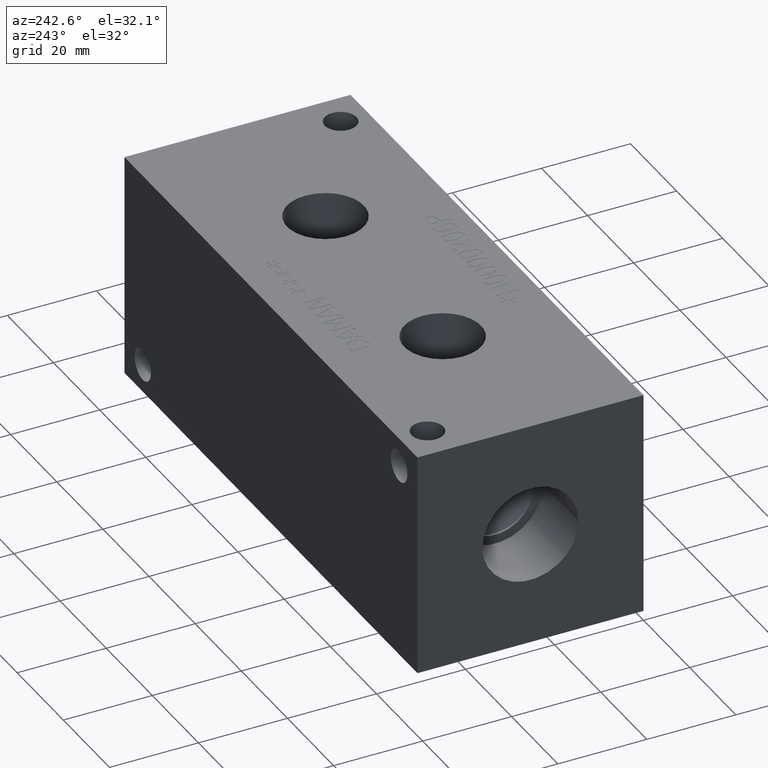
[diagram: clean part render]
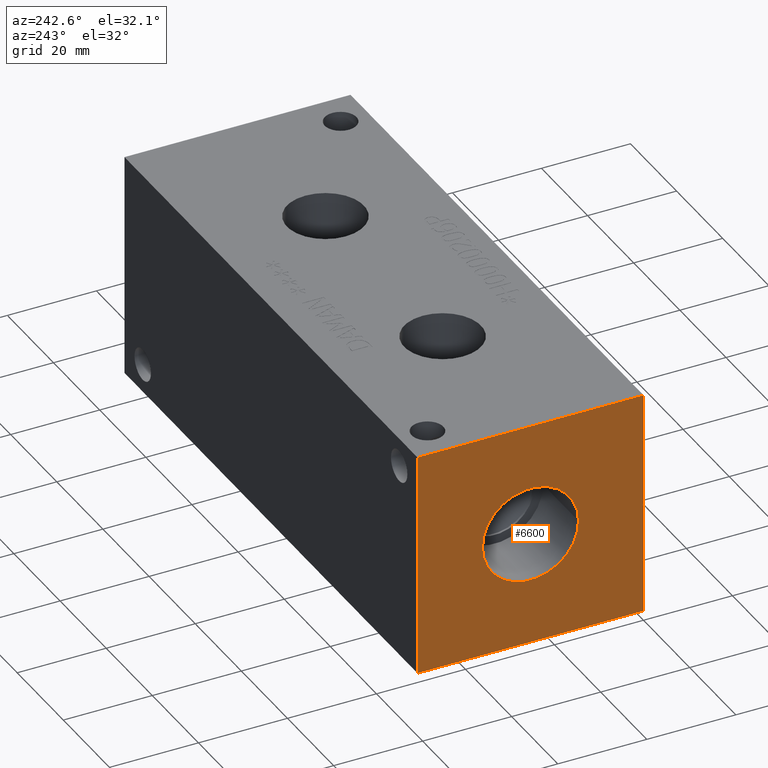
[diagram: same view with one face highlighted and labeled with its STEP entity id]
A machine part, auxiliary view. The second image highlights one B-rep face of the part: STEP entity #6600.
In plain terms, the highlighted planar face has unit normal (-1, 0, 0).
Its self-contained STEP definition (entity closure, byte-faithful):
#80=CIRCLE('',#6887,10.795);
#81=CIRCLE('',#6888,10.795);
#119=FACE_BOUND('',#1035,.T.);
#329=PLANE('',#6890);
#663=FACE_OUTER_BOUND('',#1034,.T.);
#1034=EDGE_LOOP('',(#5836,#5837,#5838,#5839));
#1035=EDGE_LOOP('',(#5840,#5841));
#1287=LINE('',#10252,#1932);
#1685=LINE('',#11304,#2330);
#1686=LINE('',#11305,#2331);
#1687=LINE('',#11306,#2332);
#1932=VECTOR('',#7251,10.);
#2330=VECTOR('',#8077,10.);
#2331=VECTOR('',#8078,10.);
#2332=VECTOR('',#8079,10.);
#2838=VERTEX_POINT('',#10245);
#2841=VERTEX_POINT('',#10250);
#3150=VERTEX_POINT('',#11294);
#3151=VERTEX_POINT('',#11295);
#3152=VERTEX_POINT('',#11302);
#3153=VERTEX_POINT('',#11303);
#3591=EDGE_CURVE('',#2841,#2838,#1287,.T.);
#4049=EDGE_CURVE('',#3150,#3151,#80,.T.);
#4050=EDGE_CURVE('',#3151,#3150,#81,.T.);
#4053=EDGE_CURVE('',#3152,#3153,#1685,.T.);
#4054=EDGE_CURVE('',#3153,#2838,#1686,.T.);
#4055=EDGE_CURVE('',#3152,#2841,#1687,.T.);
#5836=ORIENTED_EDGE('',*,*,#4053,.T.);
#5837=ORIENTED_EDGE('',*,*,#4054,.T.);
#5838=ORIENTED_EDGE('',*,*,#3591,.F.);
#5839=ORIENTED_EDGE('',*,*,#4055,.F.);
#5840=ORIENTED_EDGE('',*,*,#4049,.T.);
#5841=ORIENTED_EDGE('',*,*,#4050,.T.);
#6600=ADVANCED_FACE('',(#663,#119),#329,.T.);
#6887=AXIS2_PLACEMENT_3D('',#11296,#8067,#8068);
#6888=AXIS2_PLACEMENT_3D('',#11297,#8069,#8070);
#6890=AXIS2_PLACEMENT_3D('',#11301,#8075,#8076);
#7251=DIRECTION('',(0.,-1.,0.));
#8067=DIRECTION('center_axis',(1.,0.,0.));
#8068=DIRECTION('ref_axis',(0.,1.,0.));
#8069=DIRECTION('center_axis',(1.,0.,0.));
#8070=DIRECTION('ref_axis',(0.,1.,0.));
#8075=DIRECTION('center_axis',(-1.,0.,0.));
#8076=DIRECTION('ref_axis',(0.,-1.,0.));
#8077=DIRECTION('',(0.,-1.,0.));
#8078=DIRECTION('',(0.,0.,1.));
#8079=DIRECTION('',(0.,0.,1.));
#10245=CARTESIAN_POINT('',(0.,0.,50.8));
#10250=CARTESIAN_POINT('',(0.,50.8,50.8));
#10252=CARTESIAN_POINT('',(0.,50.8,50.8));
#11294=CARTESIAN_POINT('',(0.,36.195,25.4));
#11295=CARTESIAN_POINT('',(0.,14.605,25.4));
#11296=CARTESIAN_POINT('Origin',(0.,25.4,25.4));
#11297=CARTESIAN_POINT('Origin',(0.,25.4,25.4));
#11301=CARTESIAN_POINT('Origin',(0.,50.8,0.));
#11302=CARTESIAN_POINT('',(0.,50.8,0.));
#11303=CARTESIAN_POINT('',(0.,0.,0.));
#11304=CARTESIAN_POINT('',(0.,50.8,0.));
#11305=CARTESIAN_POINT('',(0.,0.,0.));
#11306=CARTESIAN_POINT('',(0.,50.8,0.));